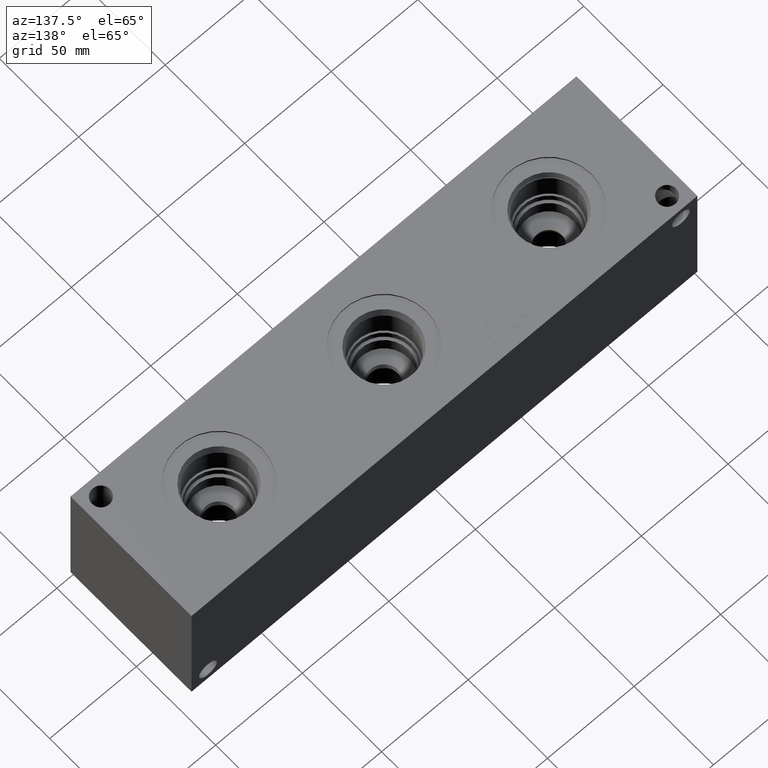
[diagram: clean part render]
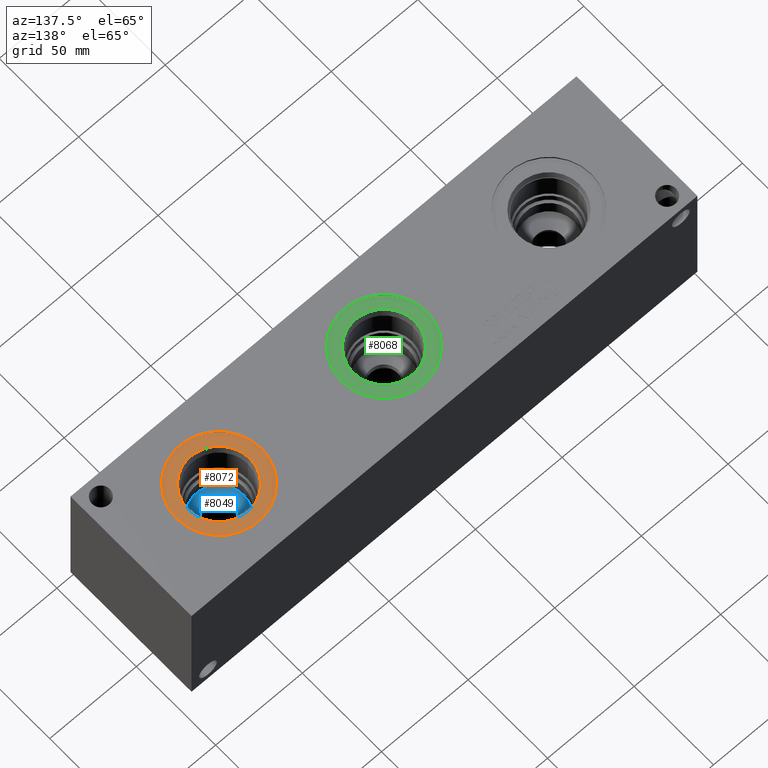
[diagram: same view with three faces highlighted in distinct colors, each labeled with its STEP entity id]
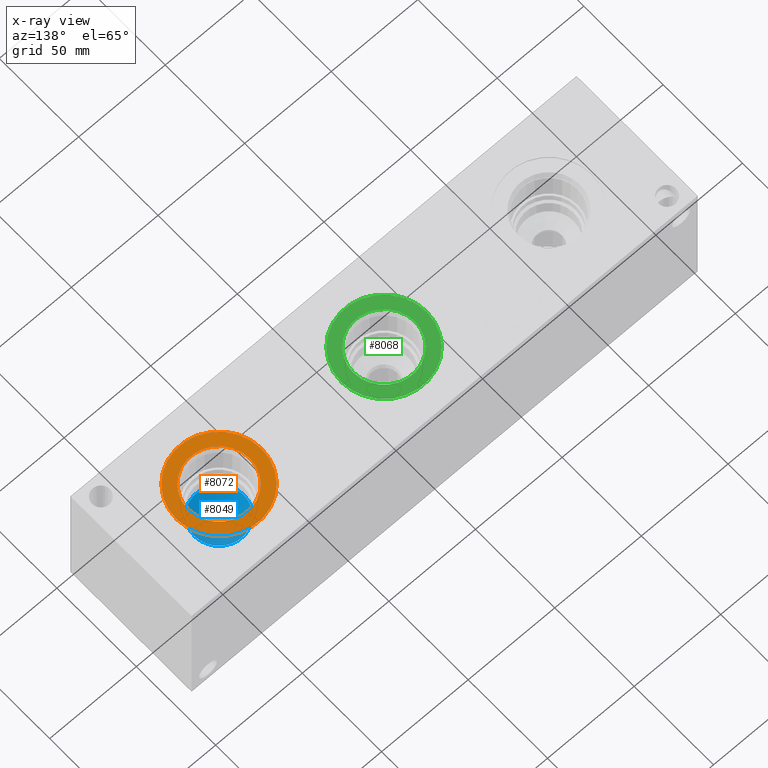
[diagram: x-ray of the same camera — body ghosted, the three highlighted faces saturated]
A machine part, auxiliary view with three faces highlighted in distinct colors.
The next image is the same camera in x-ray (body ghosted, the three faces saturated) — at least one of them is partly hidden behind the body in this view.
Their STEP definitions:

[orange] entity #8072 — the highlighted planar face has unit normal (0, 0, 1).
#210=CIRCLE('',#8504,24.5618);
#211=CIRCLE('',#8505,24.5618);
#212=CIRCLE('',#8506,17.7546);
#279=FACE_BOUND('',#1477,.T.);
#1017=FACE_OUTER_BOUND('',#1476,.T.);
#1476=EDGE_LOOP('',(#6987,#6988));
#1477=EDGE_LOOP('',(#6989));
#3729=VERTEX_POINT('',#13844);
#3730=VERTEX_POINT('',#13845);
#3731=VERTEX_POINT('',#13848);
#4826=EDGE_CURVE('',#3729,#3730,#210,.T.);
#4827=EDGE_CURVE('',#3730,#3729,#211,.T.);
#4828=EDGE_CURVE('',#3731,#3731,#212,.T.);
#6987=ORIENTED_EDGE('',*,*,#4826,.T.);
#6988=ORIENTED_EDGE('',*,*,#4827,.T.);
#6989=ORIENTED_EDGE('',*,*,#4828,.F.);
#7357=PLANE('',#8503);
#8072=ADVANCED_FACE('',(#1017,#279),#7357,.T.);
#8503=AXIS2_PLACEMENT_3D('',#13843,#10073,#10074);
#8504=AXIS2_PLACEMENT_3D('',#13846,#10075,#10076);
#8505=AXIS2_PLACEMENT_3D('',#13847,#10077,#10078);
#8506=AXIS2_PLACEMENT_3D('',#13849,#10079,#10080);
#10073=DIRECTION('center_axis',(0.,0.,1.));
#10074=DIRECTION('ref_axis',(1.,0.,0.));
#10075=DIRECTION('center_axis',(0.,0.,1.));
#10076=DIRECTION('ref_axis',(1.,0.,0.));
#10077=DIRECTION('center_axis',(0.,0.,1.));
#10078=DIRECTION('ref_axis',(1.,0.,0.));
#10079=DIRECTION('center_axis',(0.,0.,1.));
#10080=DIRECTION('ref_axis',(1.,0.,0.));
#13843=CARTESIAN_POINT('Origin',(241.3,38.1,75.4126));
#13844=CARTESIAN_POINT('',(265.8618,38.1,75.4126));
#13845=CARTESIAN_POINT('',(216.7382,38.1,75.4126));
#13846=CARTESIAN_POINT('Origin',(241.3,38.1,75.4126));
#13847=CARTESIAN_POINT('Origin',(241.3,38.1,75.4126));
#13848=CARTESIAN_POINT('',(223.5454,38.1,75.4126));
#13849=CARTESIAN_POINT('Origin',(241.3,38.1,75.4126));

[blue] entity #8049 — the highlighted conical surface has half-angle 60 deg.
#84=CONICAL_SURFACE('',#8449,7.14375,1.0471975511966);
#179=CIRCLE('',#8450,14.2875);
#180=CIRCLE('',#8451,8.29239320143379);
#181=CIRCLE('',#8452,14.2875);
#994=FACE_OUTER_BOUND('',#1450,.T.);
#1450=EDGE_LOOP('',(#6881,#6882,#6883,#6884,#6885));
#2222=LINE('',#13743,#2975);
#2975=VECTOR('',#9949,7.14375);
#3698=VERTEX_POINT('',#13739);
#3699=VERTEX_POINT('',#13740);
#3700=VERTEX_POINT('',#13742);
#4775=EDGE_CURVE('',#3698,#3699,#179,.T.);
#4776=EDGE_CURVE('',#3699,#3700,#2222,.T.);
#4777=EDGE_CURVE('',#3700,#3700,#180,.T.);
#4778=EDGE_CURVE('',#3699,#3698,#181,.T.);
#6881=ORIENTED_EDGE('',*,*,#4775,.T.);
#6882=ORIENTED_EDGE('',*,*,#4776,.T.);
#6883=ORIENTED_EDGE('',*,*,#4777,.F.);
#6884=ORIENTED_EDGE('',*,*,#4776,.F.);
#6885=ORIENTED_EDGE('',*,*,#4778,.T.);
#8049=ADVANCED_FACE('',(#994),#84,.F.);
#8449=AXIS2_PLACEMENT_3D('',#13738,#9945,#9946);
#8450=AXIS2_PLACEMENT_3D('',#13741,#9947,#9948);
#8451=AXIS2_PLACEMENT_3D('',#13744,#9950,#9951);
#8452=AXIS2_PLACEMENT_3D('',#13745,#9952,#9953);
#9945=DIRECTION('center_axis',(0.,0.,1.));
#9946=DIRECTION('ref_axis',(1.,0.,0.));
#9947=DIRECTION('center_axis',(0.,0.,1.));
#9948=DIRECTION('ref_axis',(1.,0.,0.));
#9949=DIRECTION('',(0.866025403784438,1.06057523872491E-16,-0.5));
#9950=DIRECTION('center_axis',(0.,0.,1.));
#9951=DIRECTION('ref_axis',(1.,0.,0.));
#9952=DIRECTION('center_axis',(0.,0.,1.));
#9953=DIRECTION('ref_axis',(1.,0.,0.));
#13738=CARTESIAN_POINT('Origin',(241.3,38.1,39.4284640144766));
#13739=CARTESIAN_POINT('',(255.5875,38.1,43.55291));
#13740=CARTESIAN_POINT('',(227.0125,38.1,43.55291));
#13741=CARTESIAN_POINT('Origin',(241.3,38.1,43.55291));
#13742=CARTESIAN_POINT('',(233.007606798566,38.1,40.0916334760273));
#13743=CARTESIAN_POINT('',(234.15625,38.1,39.4284640144766));
#13744=CARTESIAN_POINT('Origin',(241.3,38.1,40.0916334760273));
#13745=CARTESIAN_POINT('Origin',(241.3,38.1,43.55291));

[green] entity #8068 — the highlighted planar face has unit normal (0, 0, 1).
#207=CIRCLE('',#8497,24.5618);
#208=CIRCLE('',#8498,24.5618);
#209=CIRCLE('',#8499,17.7546);
#278=FACE_BOUND('',#1472,.T.);
#1013=FACE_OUTER_BOUND('',#1471,.T.);
#1471=EDGE_LOOP('',(#6969,#6970));
#1472=EDGE_LOOP('',(#6971));
#3726=VERTEX_POINT('',#13831);
#3727=VERTEX_POINT('',#13832);
#3728=VERTEX_POINT('',#13835);
#4820=EDGE_CURVE('',#3726,#3727,#207,.T.);
#4821=EDGE_CURVE('',#3727,#3726,#208,.T.);
#4822=EDGE_CURVE('',#3728,#3728,#209,.T.);
#6969=ORIENTED_EDGE('',*,*,#4820,.T.);
#6970=ORIENTED_EDGE('',*,*,#4821,.T.);
#6971=ORIENTED_EDGE('',*,*,#4822,.F.);
#7356=PLANE('',#8496);
#8068=ADVANCED_FACE('',(#1013,#278),#7356,.T.);
#8496=AXIS2_PLACEMENT_3D('',#13830,#10056,#10057);
#8497=AXIS2_PLACEMENT_3D('',#13833,#10058,#10059);
#8498=AXIS2_PLACEMENT_3D('',#13834,#10060,#10061);
#8499=AXIS2_PLACEMENT_3D('',#13836,#10062,#10063);
#10056=DIRECTION('center_axis',(0.,0.,1.));
#10057=DIRECTION('ref_axis',(1.,0.,0.));
#10058=DIRECTION('center_axis',(0.,0.,1.));
#10059=DIRECTION('ref_axis',(1.,0.,0.));
#10060=DIRECTION('center_axis',(0.,0.,1.));
#10061=DIRECTION('ref_axis',(1.,0.,0.));
#10062=DIRECTION('center_axis',(0.,0.,1.));
#10063=DIRECTION('ref_axis',(1.,0.,0.));
#13830=CARTESIAN_POINT('Origin',(146.05,38.1,75.4126));
#13831=CARTESIAN_POINT('',(170.6118,38.1,75.4126));
#13832=CARTESIAN_POINT('',(121.4882,38.1,75.4126));
#13833=CARTESIAN_POINT('Origin',(146.05,38.1,75.4126));
#13834=CARTESIAN_POINT('Origin',(146.05,38.1,75.4126));
#13835=CARTESIAN_POINT('',(128.2954,38.1,75.4126));
#13836=CARTESIAN_POINT('Origin',(146.05,38.1,75.4126));